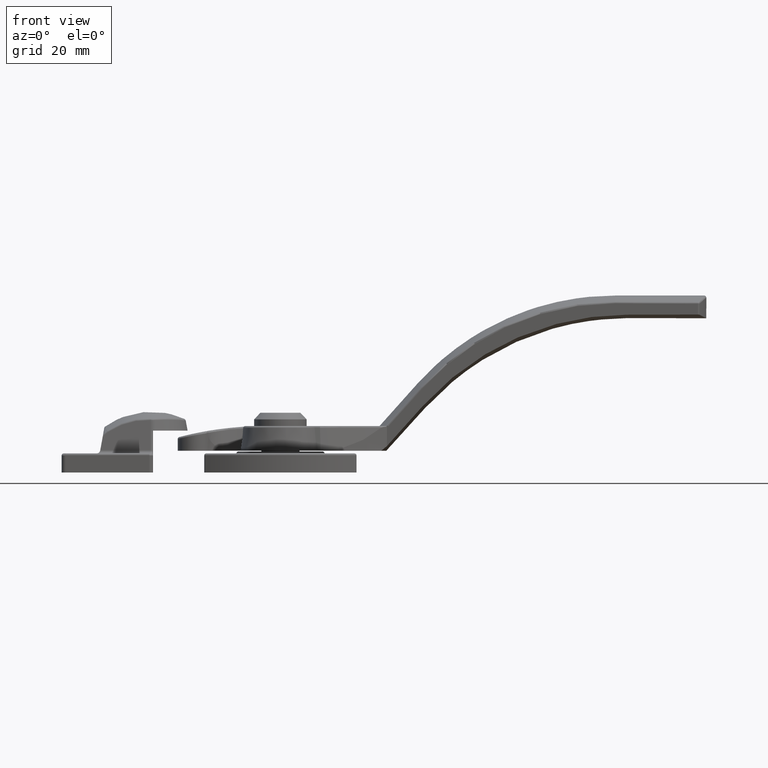
[diagram: clean part render]
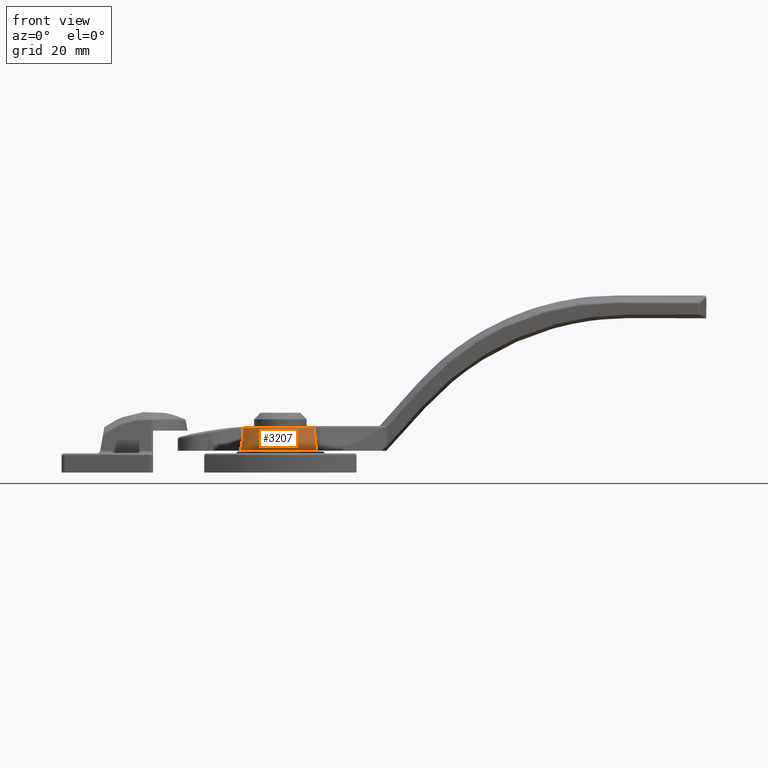
[diagram: same view with one face highlighted and labeled with its STEP entity id]
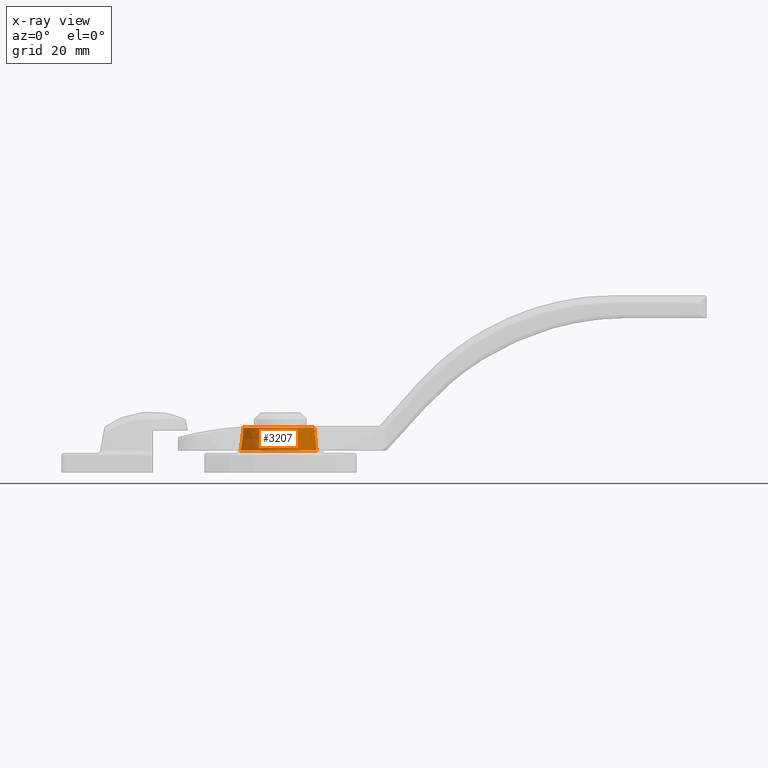
[diagram: x-ray of the same camera — body ghosted, the highlighted face saturated]
A machine part, front view. The second image highlights one B-rep face of the part: STEP entity #3207.
The next image is the same camera in x-ray: the body ghosted, the highlighted face saturated — about 0% of this face is hidden behind the body in this view.
In plain terms, the highlighted conical surface has half-angle 6.582 deg.
Its self-contained STEP definition (entity closure, byte-faithful):
#202=CONICAL_SURFACE('',#3563,10.125,0.114876605416899);
#427=CIRCLE('',#3556,9.80107937838547);
#428=CIRCLE('',#3564,10.5);
#680=FACE_OUTER_BOUND('',#926,.T.);
#926=EDGE_LOOP('',(#2773,#2774,#2775,#2776));
#1125=LINE('',#6190,#1300);
#1126=LINE('',#6193,#1301);
#1300=VECTOR('',#4416,6.09750107460111);
#1301=VECTOR('',#4419,6.0975010746011);
#1556=VERTEX_POINT('',#6152);
#1558=VERTEX_POINT('',#6158);
#1563=VERTEX_POINT('',#6186);
#1564=VERTEX_POINT('',#6192);
#1970=EDGE_CURVE('',#1556,#1558,#427,.T.);
#1980=EDGE_CURVE('',#1563,#1558,#1125,.T.);
#1981=EDGE_CURVE('',#1564,#1556,#1126,.T.);
#1982=EDGE_CURVE('',#1564,#1563,#428,.T.);
#2773=ORIENTED_EDGE('',*,*,#1970,.F.);
#2774=ORIENTED_EDGE('',*,*,#1981,.F.);
#2775=ORIENTED_EDGE('',*,*,#1982,.T.);
#2776=ORIENTED_EDGE('',*,*,#1980,.T.);
#3207=ADVANCED_FACE('',(#680),#202,.T.);
#3556=AXIS2_PLACEMENT_3D('',#6162,#4396,#4397);
#3563=AXIS2_PLACEMENT_3D('',#6191,#4417,#4418);
#3564=AXIS2_PLACEMENT_3D('',#6194,#4420,#4421);
#4396=DIRECTION('center_axis',(0.,0.,1.));
#4397=DIRECTION('ref_axis',(-0.854566017676033,-0.519342778358692,0.));
#4416=DIRECTION('',(-0.10356378742803,0.0491246177079131,0.993408935871131));
#4417=DIRECTION('center_axis',(0.,0.,-1.));
#4418=DIRECTION('ref_axis',(-0.854566017676033,-0.519342778358693,0.));
#4419=DIRECTION('',(-0.00409371814232609,-0.114550982549946,0.993408935871131));
#4420=DIRECTION('center_axis',(0.,0.,1.));
#4421=DIRECTION('ref_axis',(0.0357142857142855,0.999362041402373,0.));
#6152=CARTESIAN_POINT('',(0.350038549228058,9.79482669553001,6.05731205399256));
#6158=CARTESIAN_POINT('',(8.85535267537296,-4.20046259073663,6.05731205399257));
#6162=CARTESIAN_POINT('Origin',(-5.55111512312578E-16,5.55111512312578E-16,
6.05731205399257));
#6186=CARTESIAN_POINT('',(9.48683298050514,-4.5,0.));
#6190=CARTESIAN_POINT('',(8.8092020533262,-4.17857142857143,6.5));
#6191=CARTESIAN_POINT('Origin',(0.,0.,3.25));
#6192=CARTESIAN_POINT('',(0.374999999999998,10.4933014347249,0.));
#6193=CARTESIAN_POINT('',(0.348214285714291,9.74377990367314,6.5));
#6194=CARTESIAN_POINT('Origin',(0.,0.,0.));